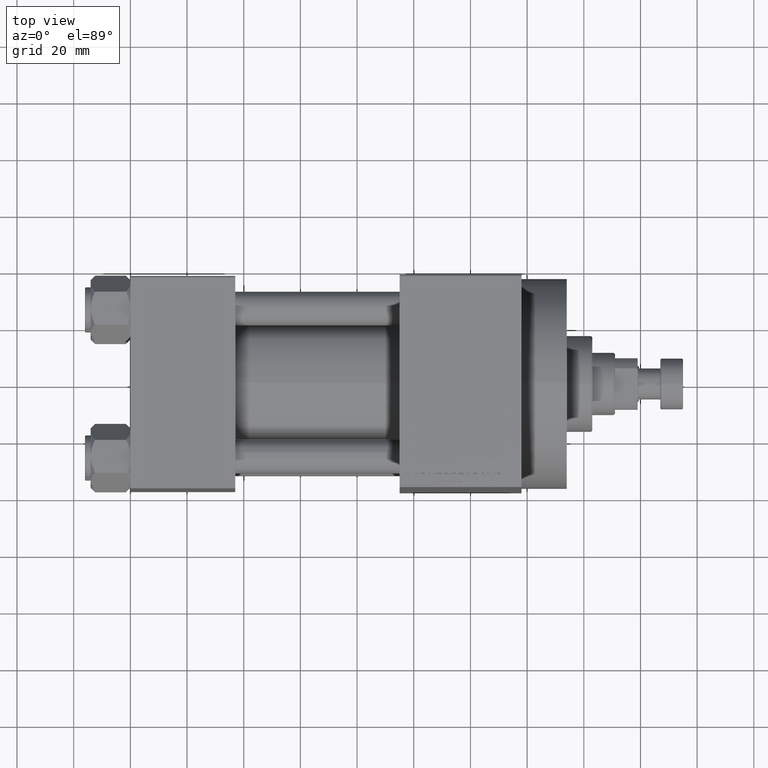
[diagram: clean part render]
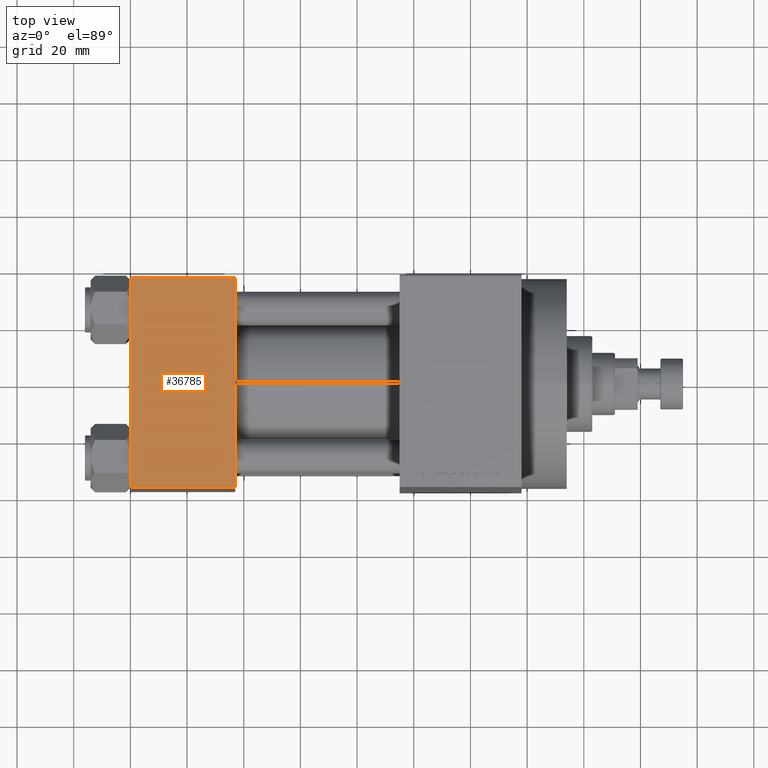
[diagram: same view with one face highlighted and labeled with its STEP entity id]
A machine part, top view. The second image highlights one B-rep face of the part: STEP entity #36785.
In plain terms, the highlighted planar face has unit normal (0, 0, -1).
Its self-contained STEP definition (entity closure, byte-faithful):
#1296 = CARTESIAN_POINT ( 'NONE',  ( 37.00000000000000000, -37.00000000000000711, 37.49999999999999289 ) ) ;
#3073 = VERTEX_POINT ( 'NONE', #9218 ) ;
#3707 = CARTESIAN_POINT ( 'NONE',  ( 0.000000000000000000, 36.99999999999999289, 37.50000000000000000 ) ) ;
#6615 = DIRECTION ( 'NONE',  ( 0.000000000000000000, 9.251858538542971581E-17, -1.000000000000000000 ) ) ;
#8491 = DIRECTION ( 'NONE',  ( 0.000000000000000000, -1.000000000000000000, -9.251858538542971581E-17 ) ) ;
#8733 = CARTESIAN_POINT ( 'NONE',  ( 37.00000000000000000, 37.49999999999999289, 37.50000000000000000 ) ) ;
#9194 = LINE ( 'NONE', #26552, #30482 ) ;
#9218 = CARTESIAN_POINT ( 'NONE',  ( 37.00000000000000000, 36.99999999999999289, 37.50000000000000000 ) ) ;
#10354 = ORIENTED_EDGE ( 'NONE', *, *, #21923, .F. ) ;
#11535 = LINE ( 'NONE', #16513, #23849 ) ;
#11961 = CARTESIAN_POINT ( 'NONE',  ( 37.00000000000000000, -37.00000000000000711, 37.49999999999999289 ) ) ;
#13112 = EDGE_CURVE ( 'NONE', #16466, #16483, #33643, .T. ) ;
#13239 = VECTOR ( 'NONE', #37975, 1000.000000000000000 ) ;
#16466 = VERTEX_POINT ( 'NONE', #37231 ) ;
#16483 = VERTEX_POINT ( 'NONE', #1296 ) ;
#16513 = CARTESIAN_POINT ( 'NONE',  ( 0.000000000000000000, 36.99999999999999289, 37.50000000000000000 ) ) ;
#19562 = DIRECTION ( 'NONE',  ( 0.000000000000000000, -1.000000000000000000, -9.251858538542971581E-17 ) ) ;
#21086 = FACE_OUTER_BOUND ( 'NONE', #23879, .T. ) ;
#21562 = ORIENTED_EDGE ( 'NONE', *, *, #13112, .T. ) ;
#21923 = EDGE_CURVE ( 'NONE', #3073, #16483, #23660, .T. ) ;
#23660 = LINE ( 'NONE', #8733, #45741 ) ;
#23849 = VECTOR ( 'NONE', #26228, 1000.000000000000000 ) ;
#23879 = EDGE_LOOP ( 'NONE', ( #29510, #21562, #10354, #47592 ) ) ;
#24449 = CARTESIAN_POINT ( 'NONE',  ( 37.00000000000000000, 37.49999999999999289, 37.50000000000000000 ) ) ;
#24655 = VERTEX_POINT ( 'NONE', #3707 ) ;
#25851 = EDGE_CURVE ( 'NONE', #24655, #16466, #9194, .T. ) ;
#26228 = DIRECTION ( 'NONE',  ( -1.000000000000000000, 0.000000000000000000, 0.000000000000000000 ) ) ;
#26552 = CARTESIAN_POINT ( 'NONE',  ( 0.000000000000000000, 37.49999999999999289, 37.50000000000000000 ) ) ;
#29510 = ORIENTED_EDGE ( 'NONE', *, *, #25851, .T. ) ;
#30482 = VECTOR ( 'NONE', #19562, 1000.000000000000000 ) ;
#33643 = LINE ( 'NONE', #11961, #13239 ) ;
#33821 = AXIS2_PLACEMENT_3D ( 'NONE', #24449, #6615, #43009 ) ;
#35064 = PLANE ( 'NONE',  #33821 ) ;
#36785 = ADVANCED_FACE ( 'NONE', ( #21086 ), #35064, .F. ) ;
#37231 = CARTESIAN_POINT ( 'NONE',  ( 0.000000000000000000, -37.00000000000000711, 37.49999999999999289 ) ) ;
#37975 = DIRECTION ( 'NONE',  ( 1.000000000000000000, 0.000000000000000000, 0.000000000000000000 ) ) ;
#38124 = EDGE_CURVE ( 'NONE', #3073, #24655, #11535, .T. ) ;
#43009 = DIRECTION ( 'NONE',  ( 0.000000000000000000, 1.000000000000000000, 9.251858538542971581E-17 ) ) ;
#45741 = VECTOR ( 'NONE', #8491, 1000.000000000000000 ) ;
#47592 = ORIENTED_EDGE ( 'NONE', *, *, #38124, .T. ) ;